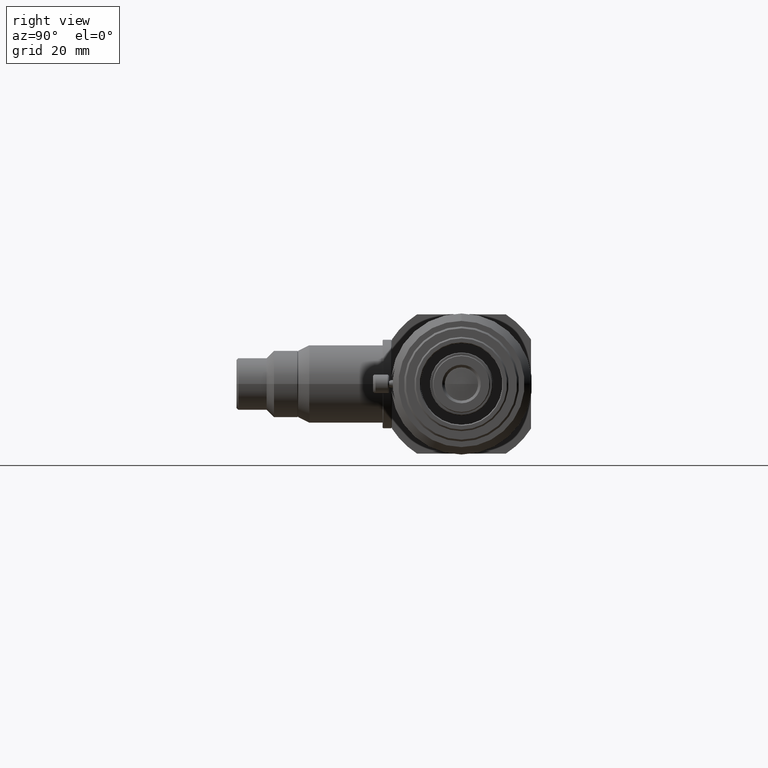
[diagram: clean part render]
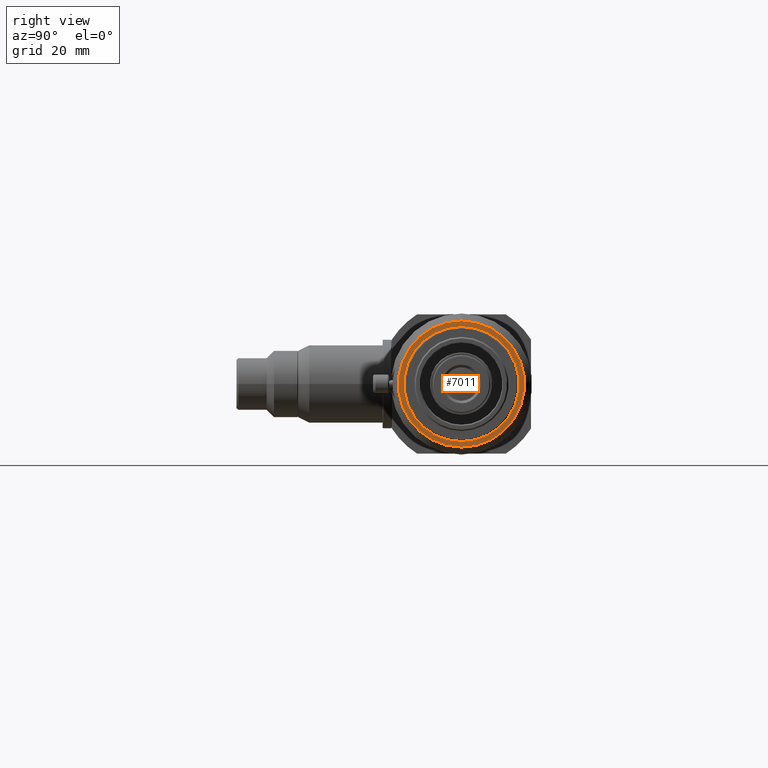
[diagram: same view with one face highlighted and labeled with its STEP entity id]
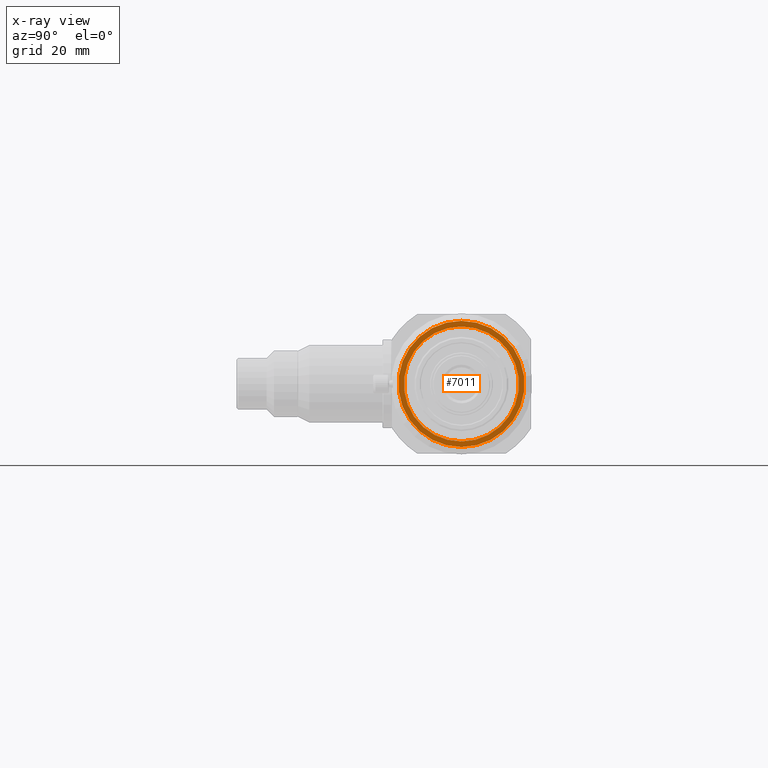
[diagram: x-ray of the same camera — body ghosted, the highlighted face saturated]
A machine part, right view. The second image highlights one B-rep face of the part: STEP entity #7011.
The next image is the same camera in x-ray: the body ghosted, the highlighted face saturated — about 0% of this face is hidden behind the body in this view.
In plain terms, the highlighted planar face has unit normal (-1, 0, -0).
Its self-contained STEP definition (entity closure, byte-faithful):
#72 = VERTEX_POINT ( 'NONE', #3893 ) ;
#167 = AXIS2_PLACEMENT_3D ( 'NONE', #3632, #8020, #4270 ) ;
#183 = CARTESIAN_POINT ( 'NONE',  ( 171.3244124218992700, 1.898202538678420000E-015, -15.50000000000018700 ) ) ;
#378 = AXIS2_PLACEMENT_3D ( 'NONE', #7114, #3366, #7747 ) ;
#466 = CARTESIAN_POINT ( 'NONE',  ( 171.3244124218992700, 2.143131898507891100E-015, -17.00000000000018800 ) ) ;
#491 = EDGE_CURVE ( 'NONE', #6357, #72, #8042, .T. ) ;
#607 = EDGE_CURVE ( 'NONE', #72, #6357, #2450, .T. ) ;
#753 = ORIENTED_EDGE ( 'NONE', *, *, #7137, .F. ) ;
#1302 = ORIENTED_EDGE ( 'NONE', *, *, #491, .T. ) ;
#1969 = DIRECTION ( 'NONE',  ( -0.0000000000000000000, 0.0000000000000000000, 1.000000000000000000 ) ) ;
#2129 = VERTEX_POINT ( 'NONE', #466 ) ;
#2291 = CARTESIAN_POINT ( 'NONE',  ( 171.3244124218992700, 0.0000000000000000000, 0.0000000000000000000 ) ) ;
#2450 = CIRCLE ( 'NONE', #167, 15.50000000000018700 ) ;
#2875 = CARTESIAN_POINT ( 'NONE',  ( 171.3244124218992700, 0.0000000000000000000, 0.0000000000000000000 ) ) ;
#2879 = VERTEX_POINT ( 'NONE', #4073 ) ;
#2918 = DIRECTION ( 'NONE',  ( 0.0000000000000000000, 0.0000000000000000000, 1.000000000000000000 ) ) ;
#3366 = DIRECTION ( 'NONE',  ( -1.000000000000000000, -0.0000000000000000000, -0.0000000000000000000 ) ) ;
#3513 = DIRECTION ( 'NONE',  ( 0.0000000000000000000, 0.0000000000000000000, 1.000000000000000000 ) ) ;
#3632 = CARTESIAN_POINT ( 'NONE',  ( 171.3244124218992700, 0.0000000000000000000, 0.0000000000000000000 ) ) ;
#3893 = CARTESIAN_POINT ( 'NONE',  ( 171.3244124218992700, 0.0000000000000000000, 15.50000000000018700 ) ) ;
#4073 = CARTESIAN_POINT ( 'NONE',  ( 171.3244124218992700, 0.0000000000000000000, 17.00000000000018800 ) ) ;
#4270 = DIRECTION ( 'NONE',  ( 0.0000000000000000000, 0.0000000000000000000, 1.000000000000000000 ) ) ;
#4468 = CARTESIAN_POINT ( 'NONE',  ( 171.3244124218992700, 15.50000000000018700, 0.0000000000000000000 ) ) ;
#4481 = FACE_OUTER_BOUND ( 'NONE', #6203, .T. ) ;
#5448 = ORIENTED_EDGE ( 'NONE', *, *, #607, .T. ) ;
#5722 = DIRECTION ( 'NONE',  ( -1.000000000000000000, 0.0000000000000000000, -0.0000000000000000000 ) ) ;
#5742 = AXIS2_PLACEMENT_3D ( 'NONE', #2291, #6659, #2918 ) ;
#6006 = EDGE_CURVE ( 'NONE', #2129, #2879, #6532, .T. ) ;
#6203 = EDGE_LOOP ( 'NONE', ( #753, #7044 ) ) ;
#6357 = VERTEX_POINT ( 'NONE', #183 ) ;
#6410 = CIRCLE ( 'NONE', #378, 17.00000000000018800 ) ;
#6532 = CIRCLE ( 'NONE', #7505, 17.00000000000018800 ) ;
#6659 = DIRECTION ( 'NONE',  ( -1.000000000000000000, -0.0000000000000000000, -0.0000000000000000000 ) ) ;
#6793 = AXIS2_PLACEMENT_3D ( 'NONE', #4468, #5722, #1969 ) ;
#7011 = ADVANCED_FACE ( 'NONE', ( #4481, #7598 ), #7571, .F. ) ;
#7044 = ORIENTED_EDGE ( 'NONE', *, *, #6006, .F. ) ;
#7114 = CARTESIAN_POINT ( 'NONE',  ( 171.3244124218992700, 0.0000000000000000000, 0.0000000000000000000 ) ) ;
#7137 = EDGE_CURVE ( 'NONE', #2879, #2129, #6410, .T. ) ;
#7218 = EDGE_LOOP ( 'NONE', ( #5448, #1302 ) ) ;
#7252 = DIRECTION ( 'NONE',  ( -1.000000000000000000, -0.0000000000000000000, -0.0000000000000000000 ) ) ;
#7505 = AXIS2_PLACEMENT_3D ( 'NONE', #2875, #7252, #3513 ) ;
#7571 = PLANE ( 'NONE',  #6793 ) ;
#7598 = FACE_BOUND ( 'NONE', #7218, .T. ) ;
#7747 = DIRECTION ( 'NONE',  ( 0.0000000000000000000, 0.0000000000000000000, 1.000000000000000000 ) ) ;
#8020 = DIRECTION ( 'NONE',  ( -1.000000000000000000, -0.0000000000000000000, -0.0000000000000000000 ) ) ;
#8042 = CIRCLE ( 'NONE', #5742, 15.50000000000018700 ) ;